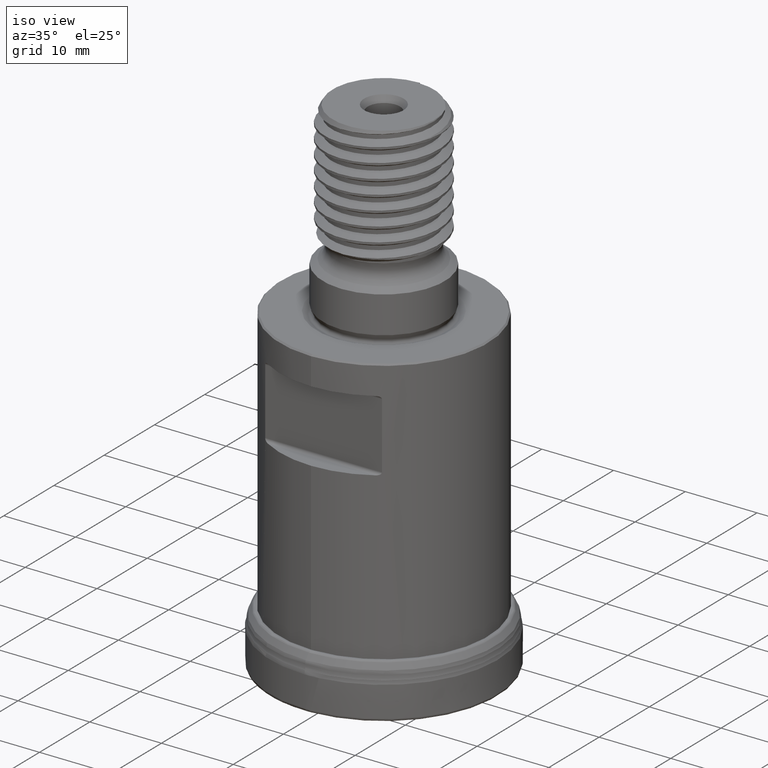
[diagram: clean part render]
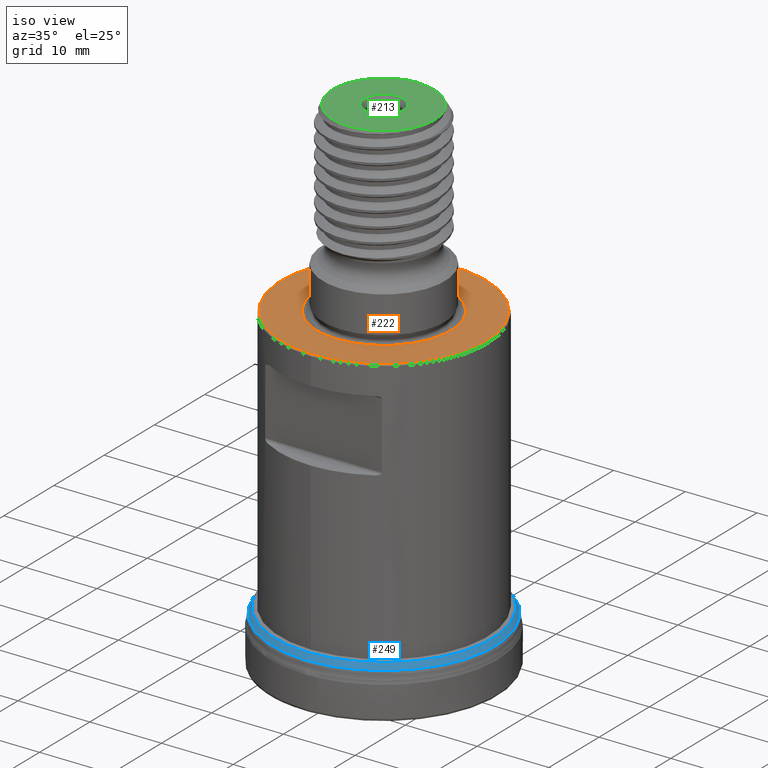
[diagram: same view with three faces highlighted in distinct colors, each labeled with its STEP entity id]
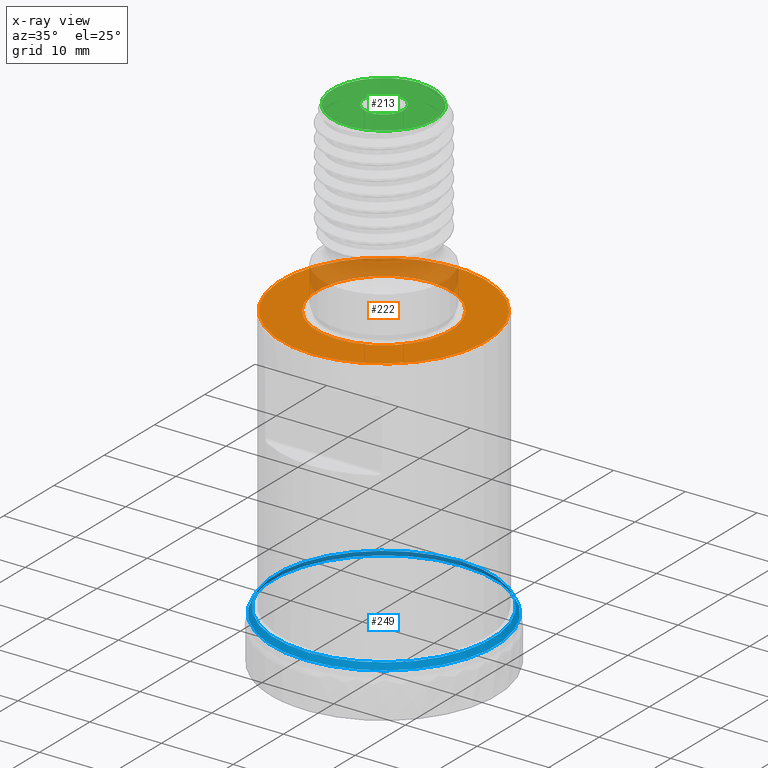
[diagram: x-ray of the same camera — body ghosted, the three highlighted faces saturated]
A machine part, iso view with three faces highlighted in distinct colors.
The next image is the same camera in x-ray (body ghosted, the three faces saturated) — at least one of them is partly hidden behind the body in this view.
Their STEP definitions:

[orange] entity #222 — the highlighted planar face has unit normal (-0, -0, -1).
#195=PLANE('',#1023);
#222=ADVANCED_FACE('',(#354,#355),#195,.F.);
#354=FACE_BOUND('',#450,.T.);
#355=FACE_BOUND('',#451,.T.);
#450=EDGE_LOOP('',(#585));
#451=EDGE_LOOP('',(#586));
#585=ORIENTED_EDGE('',*,*,#823,.T.);
#586=ORIENTED_EDGE('',*,*,#822,.F.);
#744=VERTEX_POINT('',#2049);
#745=VERTEX_POINT('',#2052);
#822=EDGE_CURVE('',#744,#744,#891,.T.);
#823=EDGE_CURVE('',#745,#745,#892,.T.);
#891=CIRCLE('',#1020,9.36627222808008);
#892=CIRCLE('',#1022,14.3);
#1020=AXIS2_PLACEMENT_3D('',#2048,#1166,#1167);
#1022=AXIS2_PLACEMENT_3D('',#2051,#1170,#1171);
#1023=AXIS2_PLACEMENT_3D('',#2053,#1172,#1173);
#1166=DIRECTION('',(1.17145536458252E-15,1.17145536458252E-15,1.));
#1167=DIRECTION('',(0.,1.,-1.48167675141972E-15));
#1170=DIRECTION('',(1.17145536458252E-15,1.17145536458252E-15,1.));
#1171=DIRECTION('',(0.,-1.,9.70474671875136E-16));
#1172=DIRECTION('',(-1.17145536458252E-15,-1.17145536458252E-15,-1.));
#1173=DIRECTION('',(0.,-1.,1.17267306976032E-15));
#2048=CARTESIAN_POINT('',(5.20711909556932E-14,5.20711909556932E-14,44.45));
#2049=CARTESIAN_POINT('',(5.20711909556932E-14,9.36627222808013,44.45));
#2051=CARTESIAN_POINT('',(5.20711909556932E-14,5.20711909556932E-14,44.45));
#2052=CARTESIAN_POINT('',(5.20711909556932E-14,-14.3,44.45));
#2053=CARTESIAN_POINT('',(14.5000000000001,5.20711909556932E-14,44.45));

[blue] entity #249 — the highlighted face is a SurfaceOfRevolution surface.
#112=SURFACE_OF_REVOLUTION('',#292,#133);
#133=AXIS1_PLACEMENT('',#3525,#1250);
#249=ADVANCED_FACE('',(#378,#379),#112,.F.);
#292=LINE('',#3524,#313);
#313=VECTOR('',#1249,0.937230345731324);
#378=FACE_BOUND('',#487,.T.);
#379=FACE_BOUND('',#488,.T.);
#487=EDGE_LOOP('',(#665));
#488=EDGE_LOOP('',(#666));
#665=ORIENTED_EDGE('',*,*,#847,.T.);
#666=ORIENTED_EDGE('',*,*,#848,.F.);
#758=VERTEX_POINT('',#3513);
#759=VERTEX_POINT('',#3523);
#847=EDGE_CURVE('',#758,#758,#901,.T.);
#848=EDGE_CURVE('',#759,#759,#902,.T.);
#901=CIRCLE('',#1052,15.558079168079);
#902=CIRCLE('',#1053,15.08113248755);
#1052=AXIS2_PLACEMENT_3D('',#3512,#1244,#1245);
#1053=AXIS2_PLACEMENT_3D('',#3522,#1247,#1248);
#1244=DIRECTION('',(0.,1.17145536458252E-15,1.));
#1245=DIRECTION('',(0.,-1.,1.17074841315424E-15));
#1247=DIRECTION('',(0.,1.17145536458252E-15,1.));
#1248=DIRECTION('',(0.,-1.,1.15026074958819E-15));
#1249=DIRECTION('',(0.500086679095405,-0.150375042092075,-0.852819242341034));
#1250=DIRECTION('',(0.,1.17145536458252E-15,1.));
#3512=CARTESIAN_POINT('',(0.,7.45510303422435E-15,6.36396678833867));
#3513=CARTESIAN_POINT('',(0.,-15.558079168079,6.36396678833868));
#3522=CARTESIAN_POINT('',(0.,8.39143332507452E-15,7.16325485270624));
#3523=CARTESIAN_POINT('',(0.,-15.08113248755,7.16325485270625));
#3524=CARTESIAN_POINT('',(15.0520008251134,-0.936924899777042,7.16325485270624));
#3525=CARTESIAN_POINT('',(0.,0.,0.));

[green] entity #213 — the highlighted planar face has unit normal (-0, -0, -1).
#194=PLANE('',#1003);
#213=ADVANCED_FACE('',(#340,#341),#194,.F.);
#280=LINE('',#1718,#301);
#301=VECTOR('',#1129,1.);
#340=FACE_BOUND('',#434,.T.);
#341=FACE_BOUND('',#435,.T.);
#434=EDGE_LOOP('',(#557));
#435=EDGE_LOOP('',(#558,#559,#560,#561));
#557=ORIENTED_EDGE('',*,*,#802,.T.);
#558=ORIENTED_EDGE('',*,*,#803,.F.);
#559=ORIENTED_EDGE('',*,*,#804,.T.);
#560=ORIENTED_EDGE('',*,*,#805,.T.);
#561=ORIENTED_EDGE('',*,*,#806,.T.);
#726=VERTEX_POINT('',#1714);
#727=VERTEX_POINT('',#1716);
#728=VERTEX_POINT('',#1717);
#729=VERTEX_POINT('',#1719);
#730=VERTEX_POINT('',#1721);
#802=EDGE_CURVE('',#726,#726,#879,.T.);
#803=EDGE_CURVE('',#727,#728,#880,.T.);
#804=EDGE_CURVE('',#727,#729,#280,.T.);
#805=EDGE_CURVE('',#729,#730,#881,.T.);
#806=EDGE_CURVE('',#730,#728,#947,.T.);
#879=CIRCLE('',#1000,2.75);
#880=CIRCLE('',#1001,7.);
#881=CIRCLE('',#1002,7.13397459621556);
#947=B_SPLINE_CURVE_WITH_KNOTS('',3,(#1722,#1723,#1724,#1725),
 .UNSPECIFIED.,.F.,.F.,(4,4),(0.,1.),.UNSPECIFIED.);
#1000=AXIS2_PLACEMENT_3D('',#1713,#1125,#1126);
#1001=AXIS2_PLACEMENT_3D('',#1715,#1127,#1128);
#1002=AXIS2_PLACEMENT_3D('',#1720,#1130,#1131);
#1003=AXIS2_PLACEMENT_3D('',#1726,#1132,#1133);
#1125=DIRECTION('',(-1.17145536458252E-15,-1.17145536458252E-15,-1.));
#1126=DIRECTION('',(0.,-1.,0.));
#1127=DIRECTION('',(-1.17145536458252E-15,-1.17145536458252E-15,-1.));
#1128=DIRECTION('',(1.,-1.76085023486833E-30,-1.98254111540207E-15));
#1129=DIRECTION('',(5.35152640779466E-30,1.,-1.17145536458252E-15));
#1130=DIRECTION('',(1.17145536458252E-15,1.17145536458252E-15,1.));
#1131=DIRECTION('',(0.,-1.,1.94530939529507E-15));
#1132=DIRECTION('',(-1.17145536458252E-15,-1.17145536458252E-15,-1.));
#1133=DIRECTION('',(0.,-1.,1.16573417585641E-15));
#1713=CARTESIAN_POINT('',(8.25290304348388E-14,8.25290304348388E-14,70.45));
#1714=CARTESIAN_POINT('',(8.25290304348388E-14,-2.74999999999992,70.45));
#1715=CARTESIAN_POINT('',(8.25290304348388E-14,8.25290304348388E-14,70.45));
#1716=CARTESIAN_POINT('',(8.25290304348387E-14,7.00000000000008,70.45));
#1717=CARTESIAN_POINT('',(5.35401283944786,4.50938427227366,70.45));
#1718=CARTESIAN_POINT('',(8.32667268468867E-14,8.25290304348389E-14,70.45));
#1719=CARTESIAN_POINT('',(8.25290304348387E-14,7.13397459621564,70.45));
#1720=CARTESIAN_POINT('',(8.25290304348388E-14,8.25290304348388E-14,70.45));
#1721=CARTESIAN_POINT('',(6.40140349429203,3.14890883366229,70.45));
#1722=CARTESIAN_POINT('',(6.401403494292,3.14890883366227,70.45));
#1723=CARTESIAN_POINT('',(6.10913267027931,3.64191383485213,70.45));
#1724=CARTESIAN_POINT('',(5.75765303477686,4.09938697941004,70.45));
#1725=CARTESIAN_POINT('',(5.35401283944786,4.50938427227366,70.45));
#1726=CARTESIAN_POINT('',(8.00000000000008,8.25290304348388E-14,70.45));